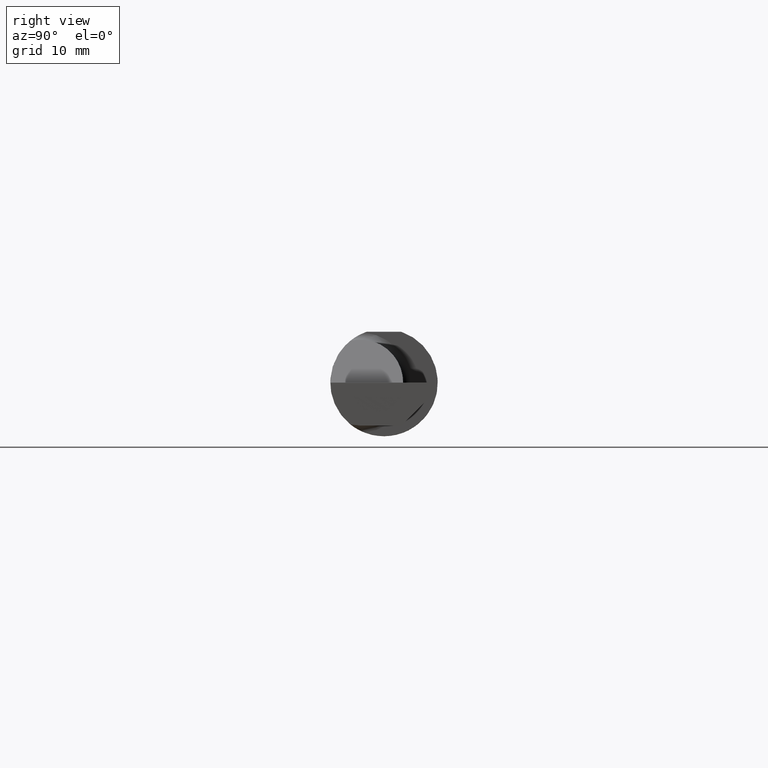
[diagram: clean part render]
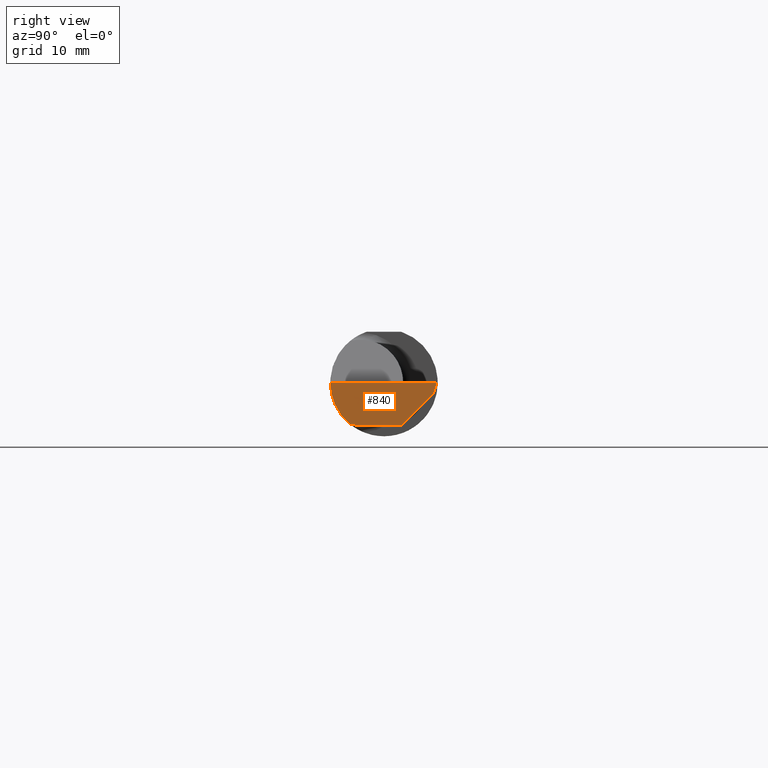
[diagram: same view with one face highlighted and labeled with its STEP entity id]
A machine part, right view. The second image highlights one B-rep face of the part: STEP entity #840.
In plain terms, the highlighted planar face has unit normal (-0.9995, 0.0174, 0.0262).
Its self-contained STEP definition (entity closure, byte-faithful):
#11 = CARTESIAN_POINT ( 'NONE',  ( 2.500000000000000000, 0.1846500000000000363, 0.000000000000000000 ) ) ;
#30 = VECTOR ( 'NONE', #564, 39.37007874015748143 ) ;
#37 = CARTESIAN_POINT ( 'NONE',  ( 2.500000000000000000, 0.1846500000000000363, 0.000000000000000000 ) ) ;
#75 = VERTEX_POINT ( 'NONE', #194 ) ;
#80 = ORIENTED_EDGE ( 'NONE', *, *, #563, .F. ) ;
#81 = EDGE_CURVE ( 'NONE', #75, #413, #262, .T. ) ;
#86 = DIRECTION ( 'NONE',  ( -0.9995050723230146650, 0.01744642593347454917, 0.02617694830787320806 ) ) ;
#97 = EDGE_CURVE ( 'NONE', #263, #413, #614, .T. ) ;
#118 = VECTOR ( 'NONE', #474, 39.37007874015748854 ) ;
#144 = DIRECTION ( 'NONE',  ( -0.03084697155452398656, -0.7067702824630919256, -0.7067702824630897052 ) ) ;
#146 = ORIENTED_EDGE ( 'NONE', *, *, #727, .F. ) ;
#155 = PLANE ( 'NONE',  #512 ) ;
#168 = EDGE_LOOP ( 'NONE', ( #781, #476, #146, #80, #311, #656 ) ) ;
#194 = CARTESIAN_POINT ( 'NONE',  ( 2.500000000000000000, 0.1846500000000000363, 0.000000000000000000 ) ) ;
#200 = CARTESIAN_POINT ( 'NONE',  ( 2.491063981715931686, -0.1623470442677541759, -0.1099340280425337851 ) ) ;
#217 = CARTESIAN_POINT ( 'NONE',  ( 2.498695265107655938, 0.1701492753368748778, -0.04015377620627467309 ) ) ;
#218 = VERTEX_POINT ( 'NONE', #780 ) ;
#255 = EDGE_CURVE ( 'NONE', #868, #646, #717, .T. ) ;
#262 = LINE ( 'NONE', #37, #30 ) ;
#263 = VERTEX_POINT ( 'NONE', #522 ) ;
#311 = ORIENTED_EDGE ( 'NONE', *, *, #81, .T. ) ;
#315 = VECTOR ( 'NONE', #144, 39.37007874015748143 ) ;
#320 =( BOUNDED_CURVE ( )  B_SPLINE_CURVE ( 3, ( #427, #495, #926, #779 ),
 .UNSPECIFIED., .F., .F. ) 
 B_SPLINE_CURVE_WITH_KNOTS ( ( 4, 4 ),
 ( 0.3598356817164759525, 0.5878737167659217056 ),
 .UNSPECIFIED. ) 
 CURVE ( )  GEOMETRIC_REPRESENTATION_ITEM ( )  RATIONAL_B_SPLINE_CURVE ( ( 1.000000000000000000, 0.9956712472009929815, 0.9956712472009929815, 1.000000000000000000 ) ) 
 REPRESENTATION_ITEM ( '' )  );
#362 = CARTESIAN_POINT ( 'NONE',  ( 2.494809345111306254, 0.1123404250442412988, -0.1499999999999999944 ) ) ;
#413 = VERTEX_POINT ( 'NONE', #852 ) ;
#427 = CARTESIAN_POINT ( 'NONE',  ( 2.490903355898019367, -0.1172600179964007477, -0.1461167706989302817 ) ) ;
#474 = DIRECTION ( 'NONE',  ( -0.03028809442608968241, -0.3088752205991470157, -0.9506201814793669991 ) ) ;
#476 = ORIENTED_EDGE ( 'NONE', *, *, #255, .F. ) ;
#495 = CARTESIAN_POINT ( 'NONE',  ( 2.491029992219911282, -0.1061291577212409576, -0.1486999626928445506 ) ) ;
#512 = AXIS2_PLACEMENT_3D ( 'NONE', #11, #86, #669 ) ;
#521 = FACE_OUTER_BOUND ( 'NONE', #168, .T. ) ;
#522 = CARTESIAN_POINT ( 'NONE',  ( 2.490903355898019367, -0.1172600179964007477, -0.1461167706989302817 ) ) ;
#545 = CARTESIAN_POINT ( 'NONE',  ( 2.490903355898019367, -0.1172600179964007477, -0.1461167706989302817 ) ) ;
#563 = EDGE_CURVE ( 'NONE', #75, #218, #899, .T. ) ;
#564 = DIRECTION ( 'NONE',  ( -0.01745240643727703073, -0.9998476951563912696, 0.000000000000000000 ) ) ;
#614 =( BOUNDED_CURVE ( )  B_SPLINE_CURVE ( 3, ( #545, #200, #832, #917 ),
 .UNSPECIFIED., .F., .T. ) 
 B_SPLINE_CURVE_WITH_KNOTS ( ( 4, 4 ),
 ( 0.08839520912052888091, 0.9829226100289757406 ),
 .UNSPECIFIED. ) 
 CURVE ( )  GEOMETRIC_REPRESENTATION_ITEM ( )  RATIONAL_B_SPLINE_CURVE ( ( 1.000000000000000000, 0.9344226172588803170, 0.9344226172588803170, 1.000000000000000000 ) ) 
 REPRESENTATION_ITEM ( '' )  );
#646 = VERTEX_POINT ( 'NONE', #701 ) ;
#656 = ORIENTED_EDGE ( 'NONE', *, *, #97, .F. ) ;
#663 = LINE ( 'NONE', #217, #315 ) ;
#665 = EDGE_CURVE ( 'NONE', #263, #646, #320, .T. ) ;
#669 = DIRECTION ( 'NONE',  ( 0.02618093305822682959, 0.000000000000000000, 0.9996572206232497981 ) ) ;
#701 = CARTESIAN_POINT ( 'NONE',  ( 2.491393556036329837, -0.08334999999999992415, -0.1499999999999999944 ) ) ;
#717 = LINE ( 'NONE', #362, #902 ) ;
#727 = EDGE_CURVE ( 'NONE', #218, #868, #663, .T. ) ;
#779 = CARTESIAN_POINT ( 'NONE',  ( 2.491393556036329837, -0.08334999999999992415, -0.1499999999999999944 ) ) ;
#780 = CARTESIAN_POINT ( 'NONE',  ( 2.498789266617083449, 0.1723030515431495657, -0.03799999999999999212 ) ) ;
#781 = ORIENTED_EDGE ( 'NONE', *, *, #665, .T. ) ;
#832 = CARTESIAN_POINT ( 'NONE',  ( 2.491992669264299742, -0.1873499999999999888, -0.05781030015605114619 ) ) ;
#840 = ADVANCED_FACE ( 'NONE', ( #521 ), #155, .F. ) ;
#852 = CARTESIAN_POINT ( 'NONE',  ( 2.493506715846705468, -0.1873499999999999888, 0.000000000000000000 ) ) ;
#868 = VERTEX_POINT ( 'NONE', #880 ) ;
#880 = CARTESIAN_POINT ( 'NONE',  ( 2.493901029378150724, 0.06030305154314920951, -0.1499999999999999944 ) ) ;
#893 = CARTESIAN_POINT ( 'NONE',  ( 2.499908263133603814, 0.1837144758152614021, -0.002879247381999359371 ) ) ;
#899 = LINE ( 'NONE', #893, #118 ) ;
#902 = VECTOR ( 'NONE', #928, 39.37007874015748143 ) ;
#917 = CARTESIAN_POINT ( 'NONE',  ( 2.493506715846705468, -0.1873499999999999888, 0.000000000000000000 ) ) ;
#926 = CARTESIAN_POINT ( 'NONE',  ( 2.491194102659540111, -0.09477667630339413340, -0.1499999999999999667 ) ) ;
#928 = DIRECTION ( 'NONE',  ( -0.01745240643727703073, -0.9998476951563912696, 0.000000000000000000 ) ) ;